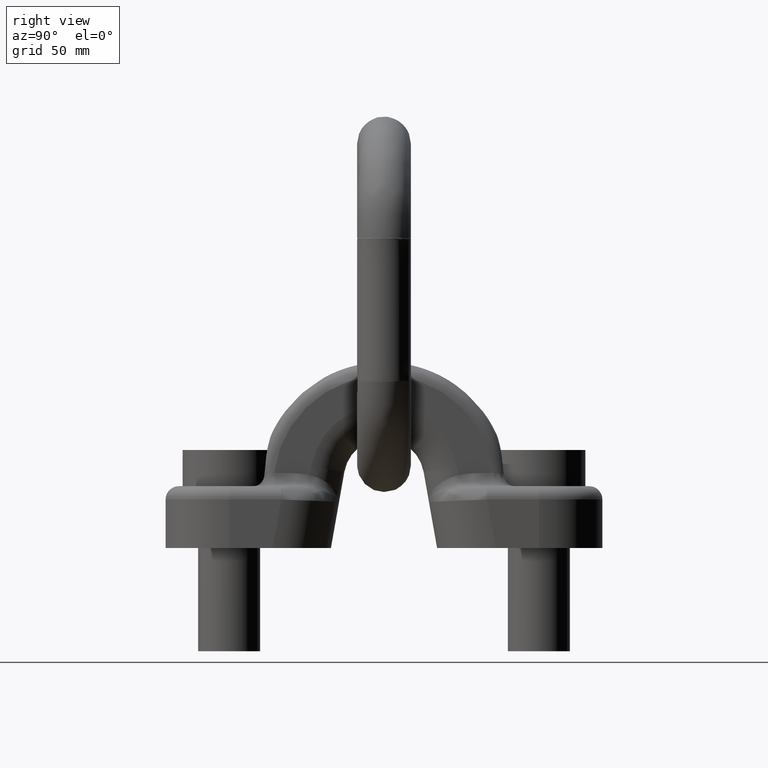
[diagram: clean part render]
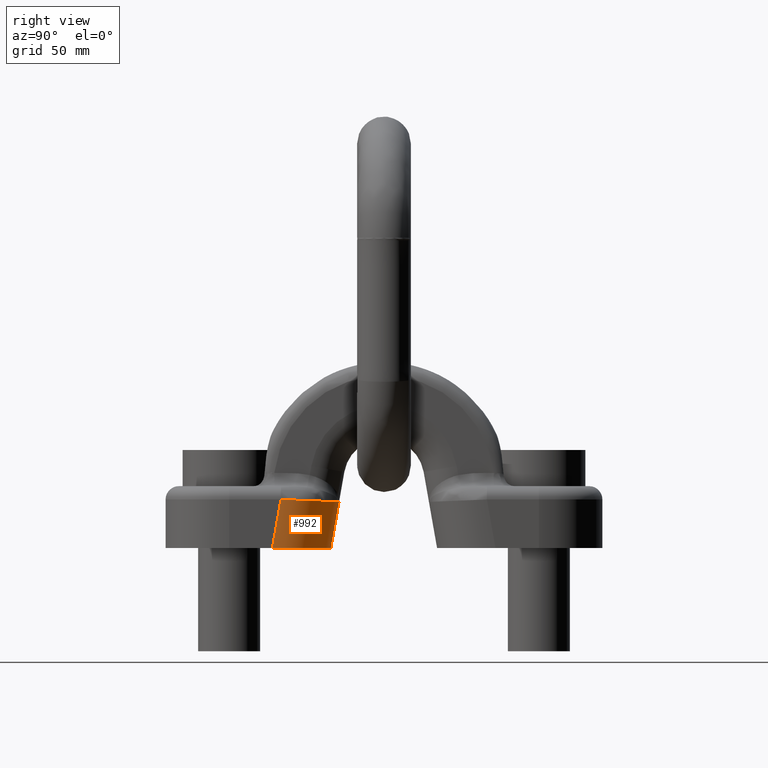
[diagram: same view with one face highlighted and labeled with its STEP entity id]
A machine part, right view. The second image highlights one B-rep face of the part: STEP entity #992.
In plain terms, the highlighted cylindrical surface (partial cylindrical patch) has radius 27.9 mm, axis along (0, 0.1736, 0.9848).
Its self-contained STEP definition (entity closure, byte-faithful):
#844=FACE_OUTER_BOUND('',#1561,.T.);
#992=ADVANCED_FACE('',(#844),#1153,.T.);
#1153=CYLINDRICAL_SURFACE('',#3581,27.9);
#1203=LINE('',#5154,#1329);
#1213=LINE('',#5188,#1339);
#1214=LINE('',#5193,#1340);
#1329=VECTOR('',#3838,1.);
#1339=VECTOR('',#3868,1.);
#1340=VECTOR('',#3873,1.);
#1561=EDGE_LOOP('',(#2174,#2175,#2176,#2177,#2178,#2179));
#1984=CIRCLE('',#3576,27.9);
#2174=ORIENTED_EDGE('',*,*,#3226,.T.);
#2175=ORIENTED_EDGE('',*,*,#3227,.T.);
#2176=ORIENTED_EDGE('',*,*,#3210,.F.);
#2177=ORIENTED_EDGE('',*,*,#3228,.F.);
#2178=ORIENTED_EDGE('',*,*,#3229,.F.);
#2179=ORIENTED_EDGE('',*,*,#3224,.T.);
#2940=VERTEX_POINT('',#5155);
#2941=VERTEX_POINT('',#5156);
#2952=VERTEX_POINT('',#5183);
#2953=VERTEX_POINT('',#5185);
#2954=VERTEX_POINT('',#5189);
#2955=VERTEX_POINT('',#5192);
#3210=EDGE_CURVE('',#2940,#2941,#1203,.T.);
#3224=EDGE_CURVE('',#2953,#2952,#1984,.T.);
#3226=EDGE_CURVE('',#2952,#2954,#1213,.T.);
#3227=EDGE_CURVE('',#2954,#2941,#3516,.T.);
#3228=EDGE_CURVE('',#2955,#2940,#3517,.T.);
#3229=EDGE_CURVE('',#2953,#2955,#1214,.T.);
#3516=ELLIPSE('',#3579,28.1540144178665,27.9);
#3517=ELLIPSE('',#3580,28.3304024716123,27.9);
#3576=AXIS2_PLACEMENT_3D('',#5184,#3862,#3863);
#3579=AXIS2_PLACEMENT_3D('',#5190,#3869,#3870);
#3580=AXIS2_PLACEMENT_3D('',#5191,#3871,#3872);
#3581=AXIS2_PLACEMENT_3D('',#5194,#3874,#3875);
#3838=DIRECTION('',(0.,0.17364817766693,0.984807753012208));
#3862=DIRECTION('',(-2.01740151701051E-16,-0.17364817766693,-0.984807753012208));
#3863=DIRECTION('',(0.,0.984807753012208,-0.17364817766693));
#3868=DIRECTION('',(0.,-0.17364817766693,-0.984807753012208));
#3869=DIRECTION('',(0.,-0.0400906648012078,-0.999196046126983));
#3870=DIRECTION('',(0.,0.999196046126984,-0.0400906648012078));
#3871=DIRECTION('',(0.,0.,-1.));
#3872=DIRECTION('',(0.,1.,0.));
#3873=DIRECTION('',(0.,-0.17364817766693,-0.984807753012208));
#3874=DIRECTION('',(0.,0.17364817766693,0.984807753012208));
#3875=DIRECTION('',(0.,-0.984807753012208,0.17364817766693));
#5154=CARTESIAN_POINT('',(31.,-46.6798874927787,41.7309236214125));
#5155=CARTESIAN_POINT('',(31.,-54.0381752571179,0.));
#5156=CARTESIAN_POINT('',(31.,-49.894491210469,23.5));
#5183=CARTESIAN_POINT('',(3.45922746781116,-19.2060287673769,36.8865410639515));
#5184=CARTESIAN_POINT('',(3.1,-46.6798874927787,41.7309236214125));
#5185=CARTESIAN_POINT('',(3.1,-19.2037511837381,36.8861394645051));
#5188=CARTESIAN_POINT('',(3.45922746781116,-19.2060287673768,36.8865410639515));
#5189=CARTESIAN_POINT('',(3.45922746781116,-21.7654432203814,22.3713804077599));
#5190=CARTESIAN_POINT('',(3.1,-49.894491210469,23.5));
#5191=CARTESIAN_POINT('',(3.1,-54.0381752571179,0.));
#5192=CARTESIAN_POINT('',(3.1,-25.7077727855056,0.));
#5193=CARTESIAN_POINT('',(3.1,-25.7077727855056,-9.84221068823185E-15));
#5194=CARTESIAN_POINT('',(3.1,-46.6798874927787,41.7309236214125));